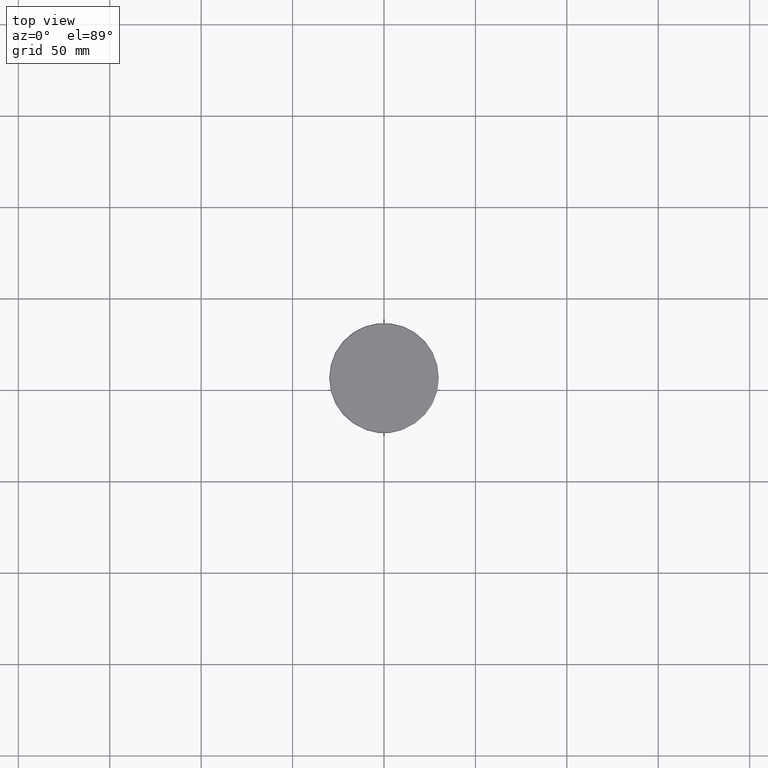
[diagram: clean part render]
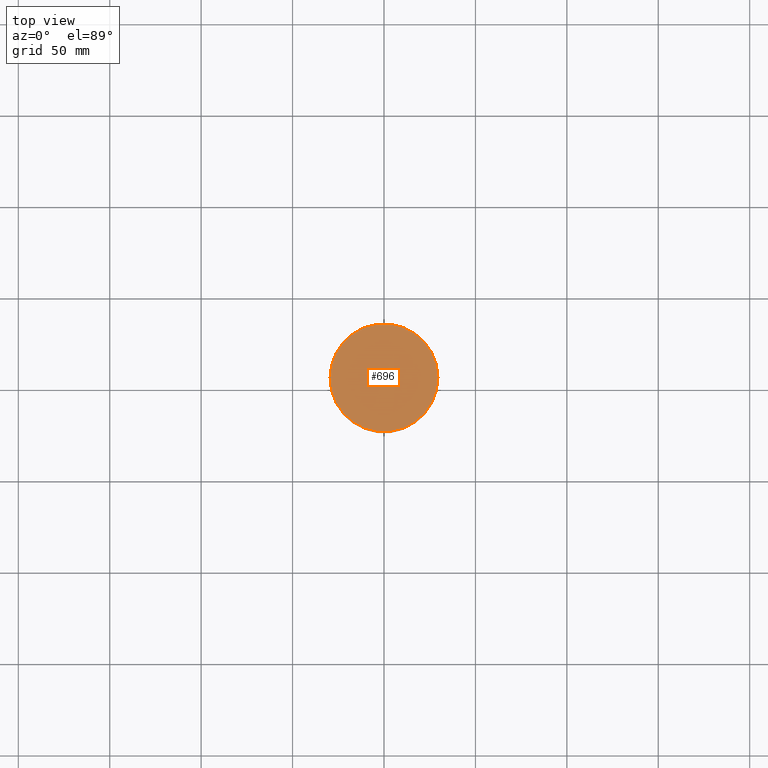
[diagram: same view with one face highlighted and labeled with its STEP entity id]
A machine part, top view. The second image highlights one B-rep face of the part: STEP entity #696.
In plain terms, the highlighted planar face has unit normal (0, -0, 1).
Its self-contained STEP definition (entity closure, byte-faithful):
#38 = DIRECTION ( 'NONE',  ( -0.000000000000000000, -0.000000000000000000, 1.000000000000000000 ) ) ;
#69 = PLANE ( 'NONE',  #517 ) ;
#89 = EDGE_CURVE ( 'NONE', #389, #874, #1138, .T. ) ;
#176 = CIRCLE ( 'NONE', #763, 29.50000000000002487 ) ;
#337 = DIRECTION ( 'NONE',  ( 1.000000000000000000, 0.000000000000000000, 0.000000000000000000 ) ) ;
#351 = FACE_OUTER_BOUND ( 'NONE', #511, .T. ) ;
#389 = VERTEX_POINT ( 'NONE', #1105 ) ;
#457 = DIRECTION ( 'NONE',  ( 0.000000000000000000, -0.000000000000000000, 1.000000000000000000 ) ) ;
#488 = CARTESIAN_POINT ( 'NONE',  ( 29.50000000000002487, 3.643324227463376968E-15, 0.000000000000000000 ) ) ;
#511 = EDGE_LOOP ( 'NONE', ( #741, #568 ) ) ;
#517 = AXIS2_PLACEMENT_3D ( 'NONE', #1076, #457, #918 ) ;
#526 = DIRECTION ( 'NONE',  ( -0.000000000000000000, -0.000000000000000000, 1.000000000000000000 ) ) ;
#568 = ORIENTED_EDGE ( 'NONE', *, *, #656, .T. ) ;
#600 = DIRECTION ( 'NONE',  ( 1.000000000000000000, 0.000000000000000000, 0.000000000000000000 ) ) ;
#618 = AXIS2_PLACEMENT_3D ( 'NONE', #623, #526, #337 ) ;
#623 = CARTESIAN_POINT ( 'NONE',  ( 0.000000000000000000, 0.000000000000000000, 0.000000000000000000 ) ) ;
#656 = EDGE_CURVE ( 'NONE', #874, #389, #176, .T. ) ;
#696 = ADVANCED_FACE ( 'NONE', ( #351 ), #69, .T. ) ;
#699 = CARTESIAN_POINT ( 'NONE',  ( 0.000000000000000000, 0.000000000000000000, 0.000000000000000000 ) ) ;
#741 = ORIENTED_EDGE ( 'NONE', *, *, #89, .T. ) ;
#763 = AXIS2_PLACEMENT_3D ( 'NONE', #699, #38, #600 ) ;
#874 = VERTEX_POINT ( 'NONE', #488 ) ;
#918 = DIRECTION ( 'NONE',  ( 1.000000000000000000, 0.000000000000000000, 0.000000000000000000 ) ) ;
#1076 = CARTESIAN_POINT ( 'NONE',  ( 0.000000000000000000, 0.000000000000000000, 0.000000000000000000 ) ) ;
#1105 = CARTESIAN_POINT ( 'NONE',  ( -29.50000000000002487, 0.000000000000000000, 0.000000000000000000 ) ) ;
#1138 = CIRCLE ( 'NONE', #618, 29.50000000000002487 ) ;